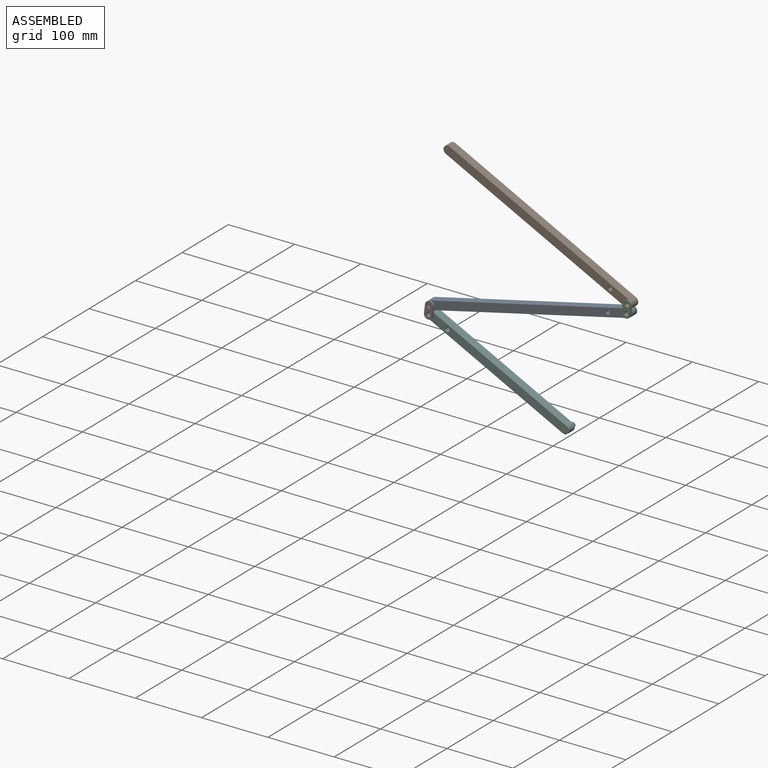
[diagram: assembled view]
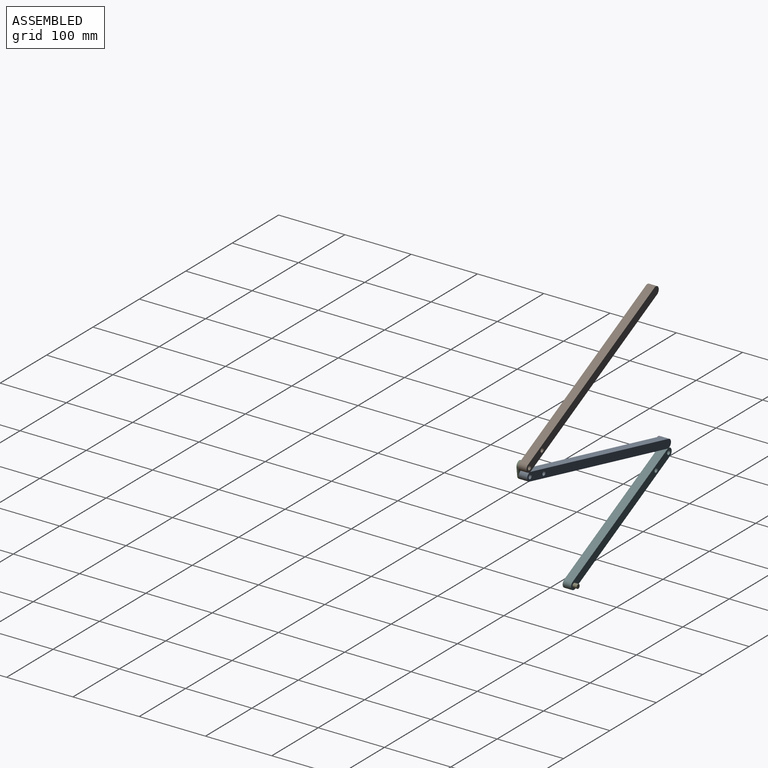
[diagram: assembled view, second angle]
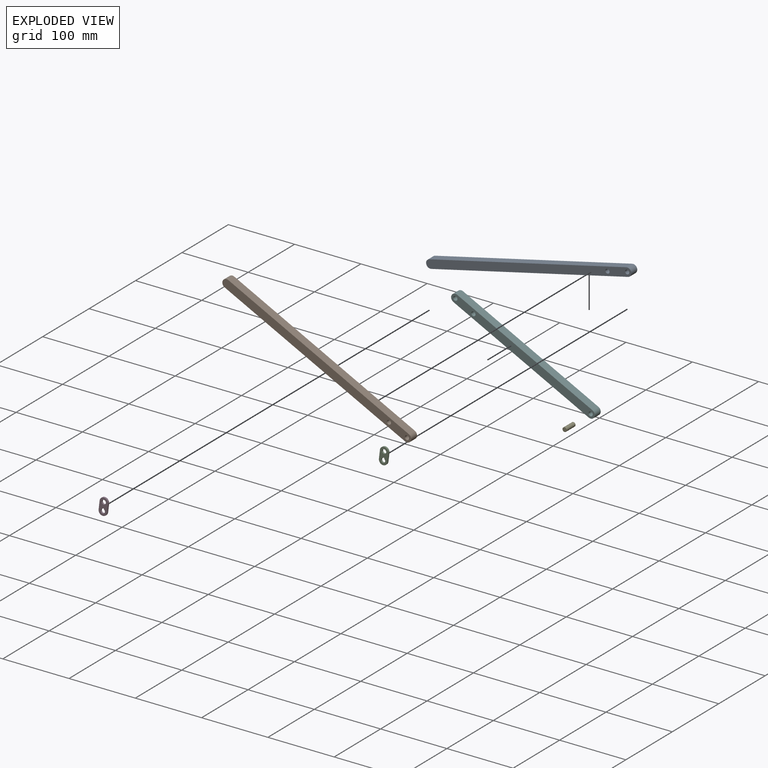
[diagram: exploded view]
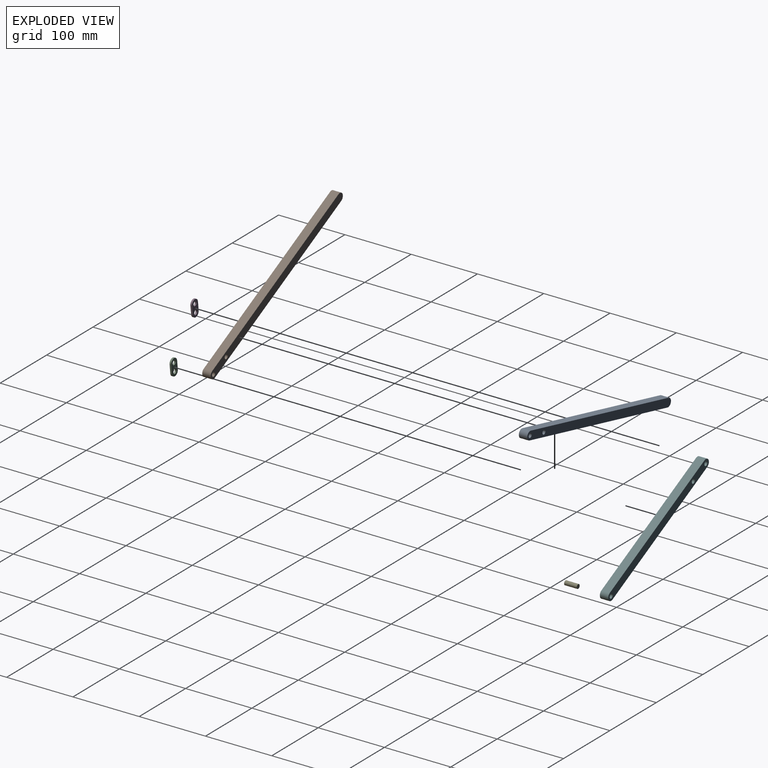
[diagram: exploded view, second angle]
ASSEMBLY  parts=6 mates=5
PART A: 8 faces, bbox 284.9x12.7x149.9 mm
  f0: plane 272.18x137.19mm, normal (-0.45,0,-0.89), area 3871mm2, adj f1,f4,f6,f7
  f1: cylinder r=6.35mm len=12.7mm, axis (0,1,0), area 253.4mm2, adj f0,f2,f6,f7
  f2: plane 272.18x137.19mm, normal (0.45,0,0.89), area 3871mm2, adj f1,f4,f6,f7
  f3: cylinder r=3.17mm len=12.7mm, axis (0,1,0), area 253.4mm2, adj f6,f7
  f4: cylinder r=6.35mm len=12.7mm, axis (0,1,0), area 253.4mm2, adj f0,f2,f6,f7
  f5: cylinder r=3.17mm len=12.7mm, axis (0,1,0), area 253.4mm2, adj f6,f7
  f6: plane 284.88x149.89mm, normal (0,-1,0), area 3934.3mm2, adj f0,f1,f2,f3,f4,f5
  f7: plane 284.88x149.89mm, normal (0,1,0), area 3934.3mm2, adj f0,f1,f2,f3,f4,f5
PART B: same geometry as A
PART C: 9 faces, bbox 12.7x2.5x25.4 mm
  f0: plane 12.7x2.54mm, normal (1,0,0), area 32.3mm2, adj f1,f6,f7,f8
  f1: cylinder r=6.35mm len=12.7mm, axis (0,1,0), area 50.7mm2, adj f0,f2,f7,f8
  f2: plane 12.7x2.54mm, normal (-1,0,0), area 32.3mm2, adj f1,f6,f7,f8
  f3: cylinder r=3.17mm len=6.35mm, axis (0,1,0), area 44.2mm2, adj f4,f7,f8
  f4: cylinder r=1.27mm len=2.54mm, axis (0,1,0), area 11.4mm2, adj f3,f7,f8
  f5: cylinder r=3.17mm len=6.35mm, axis (0,1,0), area 50.7mm2, adj f7,f8
  f6: cylinder r=6.35mm len=12.7mm, axis (0,1,0), area 50.7mm2, adj f0,f2,f7,f8
  f7: plane 25.4x12.7mm, normal (0,-1,0), area 221.9mm2, adj f0,f1,f2,f3,f4,f5,f6
  f8: plane 25.4x12.7mm, normal (0,1,0), area 221.9mm2, adj f0,f1,f2,f3,f4,f5,f6
PART D: same geometry as C
PART E: 3 faces, bbox 6.4x19.1x6.4 mm
  f0: cylinder r=3.17mm len=19.05mm, axis (0,1,0), area 380mm2, adj f1,f2
  f1: plane 6.35x6.35mm, normal (0,-1,0), area 31.7mm2, adj f0
  f2: plane 6.35x6.35mm, normal (0,1,0), area 31.7mm2, adj f0
PART F: 9 faces, bbox 223.5x12.7x101.1 mm
  f0: plane 210.83x88.36mm, normal (-0.39,0,-0.92), area 2903.2mm2, adj f1,f5,f7,f8
  f1: cylinder r=6.35mm len=12.7mm, axis (0,1,0), area 253.4mm2, adj f0,f2,f7,f8
  f2: plane 210.83x88.36mm, normal (0.39,0,0.92), area 2903.2mm2, adj f1,f5,f7,f8
  f3: cylinder r=3.17mm len=12.7mm, axis (0,1,0), area 253.4mm2, adj f7,f8
  f4: cylinder r=3.17mm len=12.7mm, axis (0,1,0), area 253.4mm2, adj f7,f8
  f5: cylinder r=6.35mm len=12.7mm, axis (0,1,0), area 253.4mm2, adj f0,f2,f7,f8
  f6: cylinder r=3.17mm len=12.7mm, axis (0,1,0), area 253.4mm2, adj f7,f8
  f7: plane 223.53x101.06mm, normal (0,-1,0), area 2934.9mm2, adj f0,f1,f2,f3,f4,f5,f6
  f8: plane 223.53x101.06mm, normal (0,1,0), area 2934.9mm2, adj f0,f1,f2,f3,f4,f5,f6
PLACE A rot(axis=(0,-1,0),39.7deg) t=(-448.37,36.44,585.88)mm
PLACE B t=(29.71,36.44,24.08)mm fixed
PLACE C rot(axis=(0,1,0),6.9deg) t=(-116.57,23.74,-364.23)mm
PLACE D rot(axis=(0,1,0),6.9deg) t=(-415.09,23.74,-445.35)mm
PLACE E rot(axis=(0,1,0),2.6deg) t=(-213.76,42.79,-494.28)mm
PLACE F rot(axis=(0,1,0),4deg) t=(-327.99,36.44,127)mm
MATE revolute A.f1 <-> C.f3  axis (0,-1,0) through (-1004.79,23.74,-360.65)mm
MATE revolute F.f4 <-> D.f3  axis (0,-1,0) through (-1303.32,23.74,-441.77)mm
MATE revolute D.f1 <-> A.f4  axis (0,1,0) through (-1301.79,23.74,-429.16)mm
MATE revolute C.f1 <-> B.f1  axis (0,1,0) through (-1003.27,23.74,-348.04)mm
MATE revolute E.f0 <-> F.f1  axis (0,-1,0) through (-1099.18,23.74,-544.66)mm
